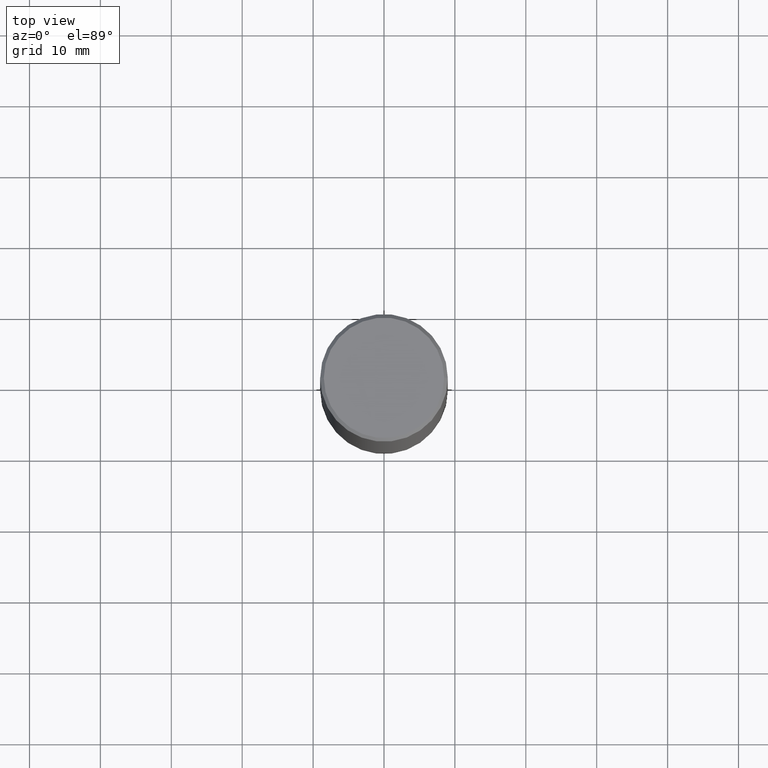
[diagram: clean part render]
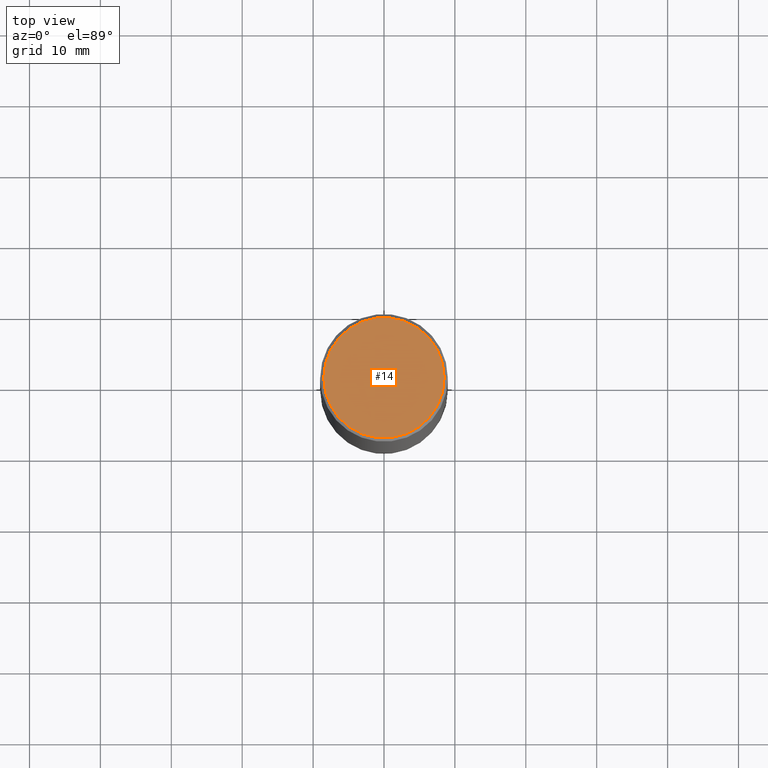
[diagram: same view with one face highlighted and labeled with its STEP entity id]
A machine part, top view. The second image highlights one B-rep face of the part: STEP entity #14.
In plain terms, the highlighted planar face has unit normal (0, -0, -1).
Its self-contained STEP definition (entity closure, byte-faithful):
#14 = ADVANCED_FACE ( 'NONE', ( #144 ), #237, .F. ) ;
#26 = DIRECTION ( 'NONE',  ( 1.000000000000000000, -6.982962677686266711E-15, 4.876061227832602160E-29 ) ) ;
#49 = AXIS2_PLACEMENT_3D ( 'NONE', #92, #112, #196 ) ;
#53 = ORIENTED_EDGE ( 'NONE', *, *, #86, .T. ) ;
#65 = ORIENTED_EDGE ( 'NONE', *, *, #161, .T. ) ;
#86 = EDGE_CURVE ( 'NONE', #331, #258, #336, .T. ) ;
#92 = CARTESIAN_POINT ( 'NONE',  ( 2.334753571284400520E-15, 0.3343499999999996475, -1.165242529397154385E-15 ) ) ;
#95 = CIRCLE ( 'NONE', #317, 0.3343499999999996475 ) ;
#112 = DIRECTION ( 'NONE',  ( 2.438088387897960049E-29, -3.491481338843145188E-15, -1.000000000000000000 ) ) ;
#116 = AXIS2_PLACEMENT_3D ( 'NONE', #313, #283, #26 ) ;
#144 = FACE_OUTER_BOUND ( 'NONE', #323, .T. ) ;
#161 = EDGE_CURVE ( 'NONE', #258, #331, #95, .T. ) ;
#196 = DIRECTION ( 'NONE',  ( -1.000000000000000000, 6.982962677686265922E-15, -4.876176775795935793E-29 ) ) ;
#210 = DIRECTION ( 'NONE',  ( 1.000000000000000000, -6.982962677686266711E-15, 4.876061227832602160E-29 ) ) ;
#237 = PLANE ( 'NONE',  #49 ) ;
#243 = DIRECTION ( 'NONE',  ( -2.445468806185136597E-29, 3.491481338843145583E-15, 1.000000000000000000 ) ) ;
#258 = VERTEX_POINT ( 'NONE', #306 ) ;
#283 = DIRECTION ( 'NONE',  ( -2.445468806185136597E-29, 3.491481338843145583E-15, 1.000000000000000000 ) ) ;
#300 = CARTESIAN_POINT ( 'NONE',  ( 0.3343499999999996475, -2.397327298921056737E-15, 4.268512490116958099E-18 ) ) ;
#306 = CARTESIAN_POINT ( 'NONE',  ( -0.3343499999999996475, 2.369668384672832169E-15, 4.268512490083961526E-18 ) ) ;
#313 = CARTESIAN_POINT ( 'NONE',  ( -1.043851414335219820E-46, 1.490343170380447200E-32, 4.268512490100411279E-18 ) ) ;
#317 = AXIS2_PLACEMENT_3D ( 'NONE', #319, #243, #210 ) ;
#319 = CARTESIAN_POINT ( 'NONE',  ( -1.043851414335219820E-46, 1.490343170380447200E-32, 4.268512490100411279E-18 ) ) ;
#323 = EDGE_LOOP ( 'NONE', ( #65, #53 ) ) ;
#331 = VERTEX_POINT ( 'NONE', #300 ) ;
#336 = CIRCLE ( 'NONE', #116, 0.3343499999999996475 ) ;